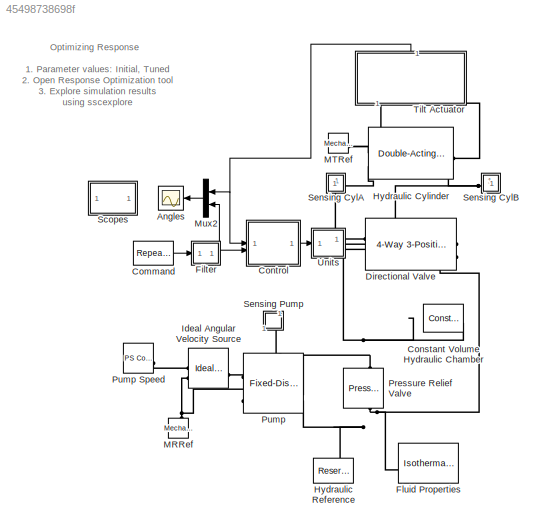
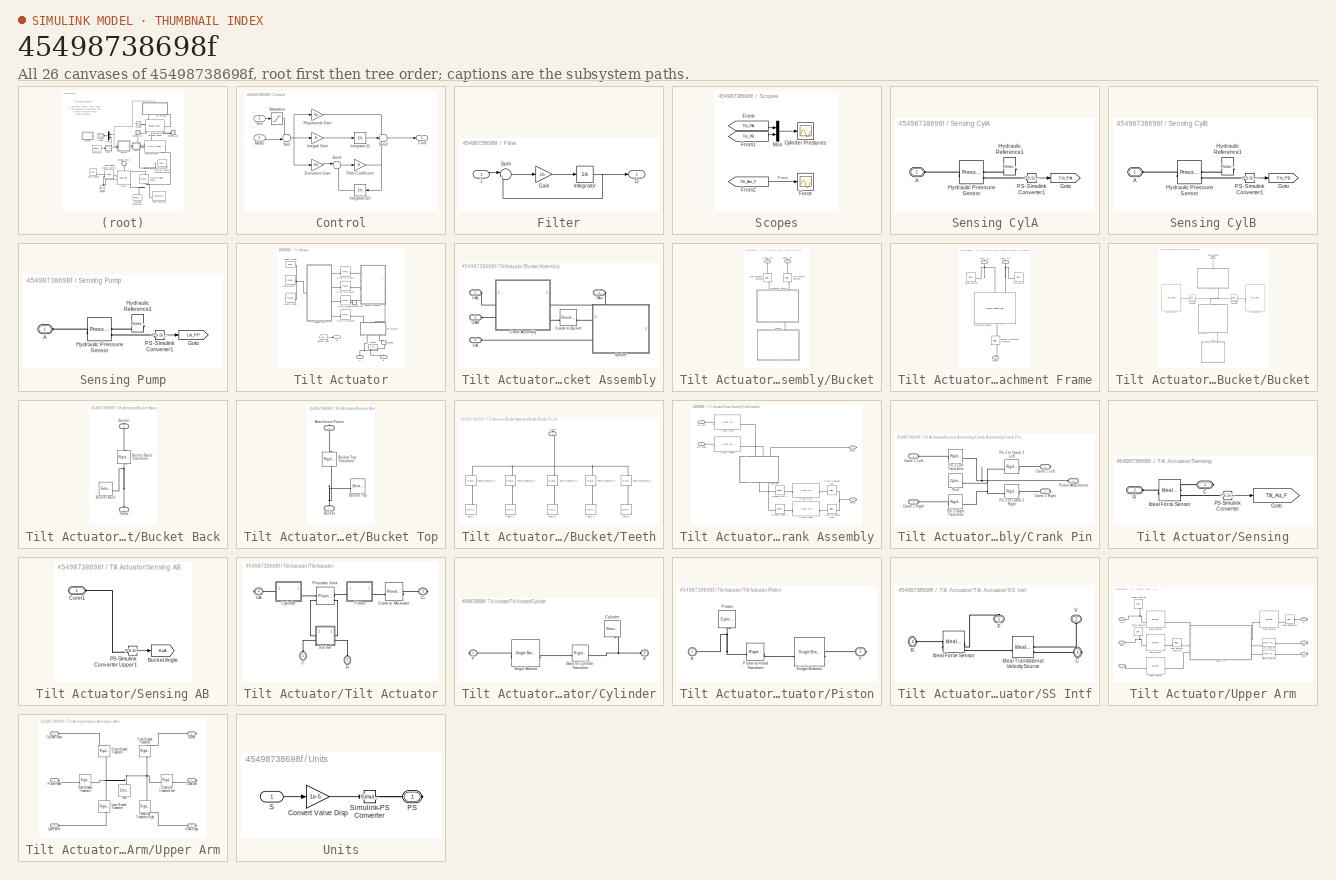
[diagram: thumbnail index - all 26 canvases of the model, root first then tree order]
MODEL slx_45498738698f
KIND model
CONFIG EnableMultiTasking = on
CONFIG MaxStep = 0.01
CONFIG PostLoadFcn = warning off Simulink:Engine:UsingDefaultMaxStepSize\nwarning off Simulink:blocks:MatchingFromNotFound\nwarning off Simulink:Engine:SaveWithParameterizedLinks_Warning\nwarning off Simulink:Engine:SolverMinStepSizeWarnForDAE\n
CONFIG PreLoadFcn = Kp_Final = 19.24;\nKi_Final = 0.5024;\n\nKp_Init = 0.1;\nKi_Init = 0.02;\n\n\nKp = Kp_Init;\nKi = Ki_Init;
CONFIG SolverName = ode23t
CONFIG StopTime = 30
WORKSPACE source: mxarray member
WORKSPACE Backhoe_TiltCyl_sdosession: sldodialogs.data.SessionData (value not decoded)
WORKSPACE cylinderGray = [0.6 0.6 0.6]
WORKSPACE darkOrange = [0.8 0.5 0]
WORKSPACE glassBlue = [0.2 0.2 1]
WORKSPACE gray = [0.3 0.3 0.3]
WORKSPACE orange = [0.8 0.65 0]
WORKSPACE pistonGray = [0.4 0.4 0.4]
WORKSPACE rhoGlass = 2500
WORKSPACE rhoRubber = 1500
WORKSPACE rhoSteel = 7800
WORKSPACE tireBlack = [0.1 0.1 0.1]
WORKSPACE wheelGray = [0.6 0.6 0.6]
WORKSPACE yellow = [0.8 0.8 0]
BLOCK [Scope] Angles
  ActiveDisplayYMaximum = 20
  ActiveDisplayYMinimum = -120
  DataLogging = on
  DataLoggingDecimation = 1
  DataLoggingSaveFormat = Structure With Time
  DataLoggingVariableName = Bucket_Angle_DATA
  Floating = off
  GraphicalSettings = {"GraphicalSettings":{"LegacySettings":true,"Style":{"AxesScalingProperties":{"ScaleAxesLimitsAtStop":false},"Style":{"AxesColor":"[0 0 0]","BackgroundColor":"[0.501960784313725 0.501960784313725 0.501960784313725]","ChannelNames":[""],"ColorOrder":"[1 0.909803921568627 0.392156862745098;0.149019607843137 0.549019607843137 0.866666666666667;0.96078431372549 0.466666666666667 0.16078431372549;0.286...<+693ch>
  MultipleDisplayCache = [{"MaxYLimMag":10,"MaxYLimReal":20,"MinYLimMag":0,"MinYLimReal":-120,"PlotAsMagnitudePhase":false,"ShowGrid":true,"ShowLegend":false,"Title":"%<SignalLabel>","YLabel":""}]
  NumInputPorts = 1
  WasSavedAsWebScope = on
BLOCK [Reference] Command  REF=simulink/Sources/Repeating
Sequence
  SourceBlock = simulink/Sources/Repeating\nSequence
  SourceType = Repeating table
BLOCK [Reference] Constant Volume Hydraulic Chamber  REF=fl_lib/Isothermal Liquid/Elements/Constant Volume
Chamber (IL)
  LibrarySourceBlock = fl_lib/Hydraulic/Hydraulic Elements/Constant Volume\nHydraulic Chamber
  NameLocation = top
  SourceBlock = fl_lib/Isothermal Liquid/Elements/Constant Volume\nChamber (IL)
  SourceType = Constant Volume\nChamber (IL)
BLOCK [SubSystem] Control
  NameLocation = top
BLOCK [Outport] Control/Cmd
  VectorParamsAs1DForOutWhenUnconnected = off
BLOCK [Gain] Control/Derivative Gain
  Gain = Kd
BLOCK [Gain] Control/Filter Coefficient
  Gain = N
BLOCK [Gain] Control/Integral Gain
  Gain = Ki
BLOCK [Integrator] Control/Integrator (D)
BLOCK [Integrator] Control/Integrator (I)
BLOCK [Inport] Control/Meas
BLOCK [Gain] Control/Proportional Gain
  Gain = Kp
BLOCK [Inport] Control/Ref
  NameLocation = top
  Port = 2
BLOCK [Saturate] Control/Saturation
  LowerLimit = lowerLim
  NameLocation = top
  UpperLimit = upperLim
BLOCK [Sum] Control/Sum
  Inputs = +-|
BLOCK [Sum] Control/Sum1
  Inputs = |+-
BLOCK [Sum] Control/Sum2
  Inputs = +++
BLOCK [Reference] Directional Valve  REF=SimscapeFluids_lib/Isothermal Liquid/Valves & Orifices/Directional Control
Valves/4-Way 3-Position
Directional Valve
(IL)
  LibrarySourceBlock = sh_lib/Valves/Directional Valves/4-Way Directional\nValve
  NameLocation = right
  SourceBlock = SimscapeFluids_lib/Isothermal Liquid/Valves & Orifices/Directional Control\nValves/4-Way 3-Position\nDirectional Valve\n(IL)
  SourceType = 4-Way 3-Position\nDirectional Valve\n(IL)
  Tag = Factory Generic
BLOCK [SubSystem] Filter
BLOCK [Gain] Filter/Gain
  Gain = 1/b
BLOCK [Inport] Filter/I
BLOCK [Integrator] Filter/Integrator
  InitialCondition = x_initial
BLOCK [Outport] Filter/O
  VectorParamsAs1DForOutWhenUnconnected = off
BLOCK [Sum] Filter/Sum
  Inputs = |+-
BLOCK [Reference] Fluid Properties  REF=fl_lib/Isothermal Liquid/Utilities/Isothermal Liquid
Properties (IL)
  LibrarySourceBlock = sh_lib/Hydraulic Utilities/Hydraulic Fluid
  SourceBlock = fl_lib/Isothermal Liquid/Utilities/Isothermal Liquid\nProperties (IL)
  SourceType = Isothermal Liquid\nProperties (IL)
BLOCK [Reference] Hydraulic Cylinder  REF=SimscapeFluids_lib/Isothermal Liquid/Actuators/Double-Acting
Actuator (IL)
  LibrarySourceBlock = sh_lib/Hydraulic Cylinders/Double-Acting\nHydraulic Cylinder
  SourceBlock = SimscapeFluids_lib/Isothermal Liquid/Actuators/Double-Acting\nActuator (IL)
  SourceType = Double-Acting\nActuator (IL)
  Tag = Factory Generic
BLOCK [Reference] Hydraulic Reference  REF=fl_lib/Isothermal Liquid/Elements/Reservoir (IL)
  LibrarySourceBlock = fl_lib/Hydraulic/Hydraulic Elements/Hydraulic Reference
  NameLocation = right
  SourceBlock = fl_lib/Isothermal Liquid/Elements/Reservoir (IL)
  SourceType = Reservoir (IL)
BLOCK [Reference] Ideal Angular Velocity Source  REF=fl_lib/Mechanical/Mechanical Sources/Ideal Angular
Velocity Source
  SourceBlock = fl_lib/Mechanical/Mechanical Sources/Ideal Angular\nVelocity Source
  SourceType = Ideal Angular\nVelocity Source
BLOCK [Reference] MRRef  REF=fl_lib/Mechanical/Rotational Elements/Mechanical
Rotational Reference
  NameLocation = right
  SourceBlock = fl_lib/Mechanical/Rotational Elements/Mechanical\nRotational Reference
  SourceType = Mechanical\nRotational Reference
BLOCK [Reference] MTRef  REF=fl_lib/Mechanical/Translational
Elements/Mechanical
Translational
Reference
  SourceBlock = fl_lib/Mechanical/Translational\nElements/Mechanical\nTranslational\nReference
  SourceType = Mechanical\nTranslational\nReference
  Tag = Factory Generic
BLOCK [Mux] Mux2
  DisplayOption = bar
  Inputs = 2
  NameLocation = top
BLOCK [Reference] Pressure Relief Valve  REF=SimscapeFluids_lib/Isothermal Liquid/Valves & Orifices/Pressure Control
Valves/Pressure Relief
Valve (IL)
  LibrarySourceBlock = sh_lib/Valves/Pressure Control\nValves/Pressure Relief\nValve
  NameLocation = right
  SourceBlock = SimscapeFluids_lib/Isothermal Liquid/Valves & Orifices/Pressure Control\nValves/Pressure Relief\nValve (IL)
  SourceType = Pressure Relief\nValve (IL)
BLOCK [Reference] Pump  REF=SimscapeFluids_lib/Isothermal Liquid/Pumps & Motors/Fixed-Displacement
Pump (IL)
  LibrarySourceBlock = sh_lib/Pumps and Motors/Fixed-Displacement\nPump
  NameLocation = right
  SourceBlock = SimscapeFluids_lib/Isothermal Liquid/Pumps & Motors/Fixed-Displacement\nPump (IL)
  SourceType = Fixed-Displacement\nPump (IL)
BLOCK [Reference] Pump Speed  REF=fl_lib/Physical Signals/Sources/PS Constant
  SourceBlock = fl_lib/Physical Signals/Sources/PS Constant
  SourceType = PS Constant
BLOCK [SubSystem] Scopes
BLOCK [Scope] Scopes/Cylinder Pressures
  ActiveDisplayYMaximum = 1.524492206148E+7
  ActiveDisplayYMinimum = 1.232835741741E+7
  DataLogging = on
  DataLoggingDecimateData = on
  DataLoggingDecimation = 1
  DataLoggingSaveFormat = Structure With Time
  DataLoggingVariableName = Cyl_Press_DATA
  Floating = off
  GraphicalSettings = {"GraphicalSettings":{"LegacySettings":true,"Style":{"AxesScalingProperties":{"ScaleAxesLimitsAtStop":false},"Style":{"AxesColor":"[0 0 0]","BackgroundColor":"[0.501960784313725 0.501960784313725 0.501960784313725]","ChannelNames":[""],"ColorOrder":"[1 0.909803921568627 0.392156862745098;0.149019607843137 0.549019607843137 0.866666666666667;0.96078431372549 0.466666666666667 0.16078431372549;0.286...<+696ch>
  MultipleDisplayCache = [{"MaxYLimMag":1.524492206148E+7,"MaxYLimReal":1.524492206148E+7,"MinYLimMag":1.232835741741E+7,"MinYLimReal":1.232835741741E+7,"PlotAsMagnitudePhase":false,"ShowGrid":true,"ShowLegend":false,"Title":"%<SignalLabel>","YLabel":""}]
  NumInputPorts = 1
  TimeSpan = 30
  WasSavedAsWebScope = on
BLOCK [Scope] Scopes/Force
  ActiveDisplayYMaximum = -162624.34482
  ActiveDisplayYMinimum = -169648.02487
  DataLogging = on
  DataLoggingDecimation = 1
  DataLoggingSaveFormat = Structure With Time
  DataLoggingVariableName = Tilt_Force_DATA
  Floating = off
  GraphicalSettings = {"GraphicalSettings":{"LegacySettings":true,"Style":{"AxesScalingProperties":{"ScaleAxesLimitsAtStop":false},"Style":{"AxesColor":"[0 0 0]","BackgroundColor":"[0.501960784313725 0.501960784313725 0.501960784313725]","ChannelNames":[""],"ColorOrder":"[1 0.909803921568627 0.392156862745098;0.149019607843137 0.549019607843137 0.866666666666667;0.96078431372549 0.466666666666667 0.16078431372549;0.286...<+747ch>
  MultipleDisplayCache = [{"MaxYLimMag":169648.02487,"MaxYLimReal":-162624.34482,"MinYLimMag":0,"MinYLimReal":-169648.02487,"PlotAsMagnitudePhase":false,"ShowGrid":true,"ShowLegend":false,"Title":"%<SignalLabel>","YLabel":""}]
  NumInputPorts = 1
  TimeSpan = 30
  WasSavedAsWebScope = on
BLOCK [From] Scopes/From
  CloseFcn = tagdialog Close
  GotoTag = Tilt_PA
  TagVisibility = global
BLOCK [From] Scopes/From1
  CloseFcn = tagdialog Close
  GotoTag = Tilt_PB
  TagVisibility = global
BLOCK [From] Scopes/From2
  GotoTag = Tilt_Act_F
  TagVisibility = global
BLOCK [Mux] Scopes/Mux
  DisplayOption = bar
  Inputs = 2
BLOCK [SubSystem] Sensing CylA
BLOCK [PMIOPort] Sensing CylA/A
  Side = Left
BLOCK [Goto] Sensing CylA/Goto
  GotoTag = Tilt_PA
  TagVisibility = global
BLOCK [Reference] Sensing CylA/Hydraulic Pressure Sensor  REF=fl_lib/Isothermal Liquid/Sensors/Pressure Sensor (IL)
  LibrarySourceBlock = fl_lib/Hydraulic/Hydraulic Sensors/Hydraulic Pressure\nSensor
  SourceBlock = fl_lib/Isothermal Liquid/Sensors/Pressure Sensor (IL)
  SourceType = Pressure Sensor (IL)
BLOCK [Reference] Sensing CylA/Hydraulic Reference1  REF=fl_lib/Isothermal Liquid/Elements/Reservoir (IL)
  LibrarySourceBlock = fl_lib/Hydraulic/Hydraulic Elements/Hydraulic Reference
  NameLocation = top
  SourceBlock = fl_lib/Isothermal Liquid/Elements/Reservoir (IL)
  SourceType = Reservoir (IL)
BLOCK [Reference] Sensing CylA/PS-Simulink Converter1  REF=nesl_utility/PS-Simulink
Converter
  SourceBlock = nesl_utility/PS-Simulink\nConverter
  SourceType = PS-Simulink\nConverter
BLOCK [SubSystem] Sensing CylB
  NameLocation = top
BLOCK [PMIOPort] Sensing CylB/A
  Side = Left
BLOCK [Goto] Sensing CylB/Goto
  GotoTag = Tilt_PB
  TagVisibility = global
BLOCK [Reference] Sensing CylB/Hydraulic Pressure Sensor  REF=fl_lib/Isothermal Liquid/Sensors/Pressure Sensor (IL)
  LibrarySourceBlock = fl_lib/Hydraulic/Hydraulic Sensors/Hydraulic Pressure\nSensor
  SourceBlock = fl_lib/Isothermal Liquid/Sensors/Pressure Sensor (IL)
  SourceType = Pressure Sensor (IL)
BLOCK [Reference] Sensing CylB/Hydraulic Reference1  REF=fl_lib/Isothermal Liquid/Elements/Reservoir (IL)
  LibrarySourceBlock = fl_lib/Hydraulic/Hydraulic Elements/Hydraulic Reference
  NameLocation = top
  SourceBlock = fl_lib/Isothermal Liquid/Elements/Reservoir (IL)
  SourceType = Reservoir (IL)
BLOCK [Reference] Sensing CylB/PS-Simulink Converter1  REF=nesl_utility/PS-Simulink
Converter
  SourceBlock = nesl_utility/PS-Simulink\nConverter
  SourceType = PS-Simulink\nConverter
BLOCK [SubSystem] Sensing Pump
  NameLocation = left
BLOCK [PMIOPort] Sensing Pump/A
  Side = Left
BLOCK [Goto] Sensing Pump/Goto
  GotoTag = Lift_PP
  TagVisibility = global
BLOCK [Reference] Sensing Pump/Hydraulic Pressure Sensor  REF=fl_lib/Isothermal Liquid/Sensors/Pressure Sensor (IL)
  LibrarySourceBlock = fl_lib/Hydraulic/Hydraulic Sensors/Hydraulic Pressure\nSensor
  SourceBlock = fl_lib/Isothermal Liquid/Sensors/Pressure Sensor (IL)
  SourceType = Pressure Sensor (IL)
BLOCK [Reference] Sensing Pump/Hydraulic Reference1  REF=fl_lib/Isothermal Liquid/Elements/Reservoir (IL)
  LibrarySourceBlock = fl_lib/Hydraulic/Hydraulic Elements/Hydraulic Reference
  NameLocation = top
  SourceBlock = fl_lib/Isothermal Liquid/Elements/Reservoir (IL)
  SourceType = Reservoir (IL)
BLOCK [Reference] Sensing Pump/PS-Simulink Converter1  REF=nesl_utility/PS-Simulink
Converter
  SourceBlock = nesl_utility/PS-Simulink\nConverter
  SourceType = PS-Simulink\nConverter
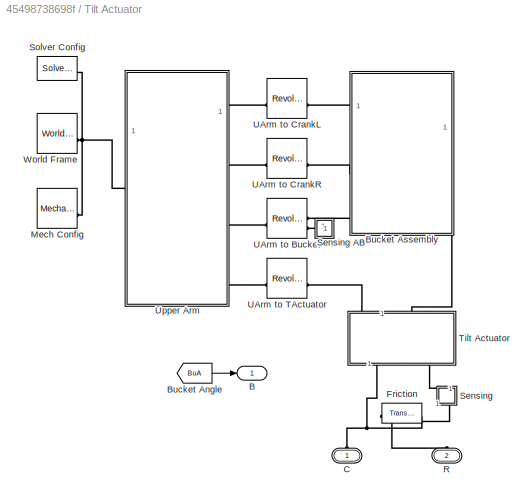
BLOCK [SubSystem] Tilt Actuator
  NameLocation = right
  Tag = PublishSubsystem
BLOCK [Outport] Tilt Actuator/B
  VectorParamsAs1DForOutWhenUnconnected = off
BLOCK [From] Tilt Actuator/Bucket Angle
  GotoTag = BuA
  TagVisibility = global
BLOCK [SubSystem] Tilt Actuator/Bucket Assembly
BLOCK [SubSystem] Tilt Actuator/Bucket Assembly/Bucket
BLOCK [Reference] Tilt Actuator/Bucket Assembly/Bucket/Arm Revolute Rotation  REF=sm_lib/Frames and
Transforms/Rigid
Transform
  NameLocation = right
  SourceBlock = sm_lib/Frames and\nTransforms/Rigid\nTransform
  SourceType = Rigid\nTransform
BLOCK [SubSystem] Tilt Actuator/Bucket Assembly/Bucket/Attachment Frame
  NameLocation = right
BLOCK [Reference] Tilt Actuator/Bucket Assembly/Bucket/Attachment Frame/Arm Link Pin  REF=sm_lib/Body Elements/Cylindrical Solid
  SourceBlock = sm_lib/Body Elements/Cylindrical Solid
  SourceType = Cylindrical Solid
BLOCK [Reference] Tilt Actuator/Bucket Assembly/Bucket/Attachment Frame/Attachment Plates  REF=Backhoe_Lib/Bracket Double Hole
  NameLocation = right
  SourceBlock = Backhoe_Lib/Bracket Double Hole
  SourceType = Bracket Double Hole
BLOCK [PMIOPort] Tilt Actuator/Bucket Assembly/Bucket/Attachment Frame/Bucket
  NameLocation = left
  Port = 3
  Side = Left
BLOCK [Reference] Tilt Actuator/Bucket Assembly/Bucket/Attachment Frame/Bucket Attachment Transform  REF=sm_lib/Frames and
Transforms/Rigid
Transform
  NameLocation = right
  SourceBlock = sm_lib/Frames and\nTransforms/Rigid\nTransform
  SourceType = Rigid\nTransform
BLOCK [PMIOPort] Tilt Actuator/Bucket Assembly/Bucket/Attachment Frame/Crank Arm
  NameLocation = left
  Side = Right
BLOCK [Reference] Tilt Actuator/Bucket Assembly/Bucket/Attachment Frame/Crank Link Pin  REF=sm_lib/Body Elements/Cylindrical Solid
  SourceBlock = sm_lib/Body Elements/Cylindrical Solid
  SourceType = Cylindrical Solid
BLOCK [PMIOPort] Tilt Actuator/Bucket Assembly/Bucket/Attachment Frame/Upper Arm
  NameLocation = right
  Port = 2
  Side = Right
BLOCK [SubSystem] Tilt Actuator/Bucket Assembly/Bucket/Bucket
  NameLocation = right
BLOCK [PMIOPort] Tilt Actuator/Bucket Assembly/Bucket/Bucket/Attachment Frame
  NameLocation = right
  Side = Right
BLOCK [SubSystem] Tilt Actuator/Bucket Assembly/Bucket/Bucket/Bucket Back
  NameLocation = right
BLOCK [PMIOPort] Tilt Actuator/Bucket Assembly/Bucket/Bucket/Bucket Back/Bucket
  NameLocation = right
  Side = Right
BLOCK [Reference] Tilt Actuator/Bucket Assembly/Bucket/Bucket/Bucket Back/Bucket Back  REF=sm_lib/Body Elements/Extruded Solid
  NameLocation = top
  SourceBlock = sm_lib/Body Elements/Extruded Solid
  SourceType = Extruded Solid
BLOCK [Reference] Tilt Actuator/Bucket Assembly/Bucket/Bucket/Bucket Back/Bucket Back Transform  REF=sm_lib/Frames and
Transforms/Rigid
Transform
  NameLocation = left
  SourceBlock = sm_lib/Frames and\nTransforms/Rigid\nTransform
  SourceType = Rigid\nTransform
BLOCK [PMIOPort] Tilt Actuator/Bucket Assembly/Bucket/Bucket/Bucket Back/Teeth
  NameLocation = right
  Port = 2
  Side = Left
BLOCK [Reference] Tilt Actuator/Bucket Assembly/Bucket/Bucket/Bucket Left Transform  REF=sm_lib/Frames and
Transforms/Rigid
Transform
  NameLocation = top
  SourceBlock = sm_lib/Frames and\nTransforms/Rigid\nTransform
  SourceType = Rigid\nTransform
BLOCK [Reference] Tilt Actuator/Bucket Assembly/Bucket/Bucket/Bucket Right Transform  REF=sm_lib/Frames and
Transforms/Rigid
Transform
  NameLocation = top
  SourceBlock = sm_lib/Frames and\nTransforms/Rigid\nTransform
  SourceType = Rigid\nTransform
BLOCK [Reference] Tilt Actuator/Bucket Assembly/Bucket/Bucket/Bucket Side Left  REF=Backhoe_Lib/Bucket Side
  SourceBlock = Backhoe_Lib/Bucket Side
  SourceType = Bucket Side
BLOCK [Reference] Tilt Actuator/Bucket Assembly/Bucket/Bucket/Bucket SideRight  REF=Backhoe_Lib/Bucket Side
  SourceBlock = Backhoe_Lib/Bucket Side
  SourceType = Bucket Side
BLOCK [SubSystem] Tilt Actuator/Bucket Assembly/Bucket/Bucket/Bucket Top
  NameLocation = right
BLOCK [PMIOPort] Tilt Actuator/Bucket Assembly/Bucket/Bucket/Bucket Top/Attachment Frame
  NameLocation = right
  Side = Right
BLOCK [PMIOPort] Tilt Actuator/Bucket Assembly/Bucket/Bucket/Bucket Top/Bucket
  NameLocation = right
  Port = 2
  Side = Left
BLOCK [Reference] Tilt Actuator/Bucket Assembly/Bucket/Bucket/Bucket Top/Bucket Top  REF=sm_lib/Body Elements/Brick Solid
  NameLocation = top
  SourceBlock = sm_lib/Body Elements/Brick Solid
  SourceType = Brick Solid
BLOCK [Reference] Tilt Actuator/Bucket Assembly/Bucket/Bucket/Bucket Top/Bucket Top Transform  REF=sm_lib/Frames and
Transforms/Rigid
Transform
  NameLocation = right
  SourceBlock = sm_lib/Frames and\nTransforms/Rigid\nTransform
  SourceType = Rigid\nTransform
BLOCK [SubSystem] Tilt Actuator/Bucket Assembly/Bucket/Bucket/Teeth
  NameLocation = right
BLOCK [PMIOPort] Tilt Actuator/Bucket Assembly/Bucket/Bucket/Teeth/Bucket
  NameLocation = right
  Side = Right
BLOCK [Reference] Tilt Actuator/Bucket Assembly/Bucket/Bucket/Teeth/Tooth 1  REF=sm_lib/Body Elements/Extruded Solid
  NameLocation = left
  SourceBlock = sm_lib/Body Elements/Extruded Solid
  SourceType = Extruded Solid
BLOCK [Reference] Tilt Actuator/Bucket Assembly/Bucket/Bucket/Teeth/Tooth 2  REF=sm_lib/Body Elements/Extruded Solid
  NameLocation = left
  SourceBlock = sm_lib/Body Elements/Extruded Solid
  SourceType = Extruded Solid
BLOCK [Reference] Tilt Actuator/Bucket Assembly/Bucket/Bucket/Teeth/Tooth 3  REF=sm_lib/Body Elements/Extruded Solid
  NameLocation = left
  SourceBlock = sm_lib/Body Elements/Extruded Solid
  SourceType = Extruded Solid
BLOCK [Reference] Tilt Actuator/Bucket Assembly/Bucket/Bucket/Teeth/Tooth 4  REF=sm_lib/Body Elements/Extruded Solid
  NameLocation = left
  SourceBlock = sm_lib/Body Elements/Extruded Solid
  SourceType = Extruded Solid
BLOCK [Reference] Tilt Actuator/Bucket Assembly/Bucket/Bucket/Teeth/Tooth 5  REF=sm_lib/Body Elements/Extruded Solid
  NameLocation = left
  SourceBlock = sm_lib/Body Elements/Extruded Solid
  SourceType = Extruded Solid
BLOCK [Reference] Tilt Actuator/Bucket Assembly/Bucket/Bucket/Teeth/Tooth Transform 1  REF=sm_lib/Frames and
Transforms/Rigid
Transform
  NameLocation = left
  SourceBlock = sm_lib/Frames and\nTransforms/Rigid\nTransform
  SourceType = Rigid\nTransform
BLOCK [Reference] Tilt Actuator/Bucket Assembly/Bucket/Bucket/Teeth/Tooth Transform 2  REF=sm_lib/Frames and
Transforms/Rigid
Transform
  NameLocation = left
  SourceBlock = sm_lib/Frames and\nTransforms/Rigid\nTransform
  SourceType = Rigid\nTransform
BLOCK [Reference] Tilt Actuator/Bucket Assembly/Bucket/Bucket/Teeth/Tooth Transform 3  REF=sm_lib/Frames and
Transforms/Rigid
Transform
  NameLocation = left
  SourceBlock = sm_lib/Frames and\nTransforms/Rigid\nTransform
  SourceType = Rigid\nTransform
BLOCK [Reference] Tilt Actuator/Bucket Assembly/Bucket/Bucket/Teeth/Tooth Transform 4  REF=sm_lib/Frames and
Transforms/Rigid
Transform
  NameLocation = left
  SourceBlock = sm_lib/Frames and\nTransforms/Rigid\nTransform
  SourceType = Rigid\nTransform
BLOCK [Reference] Tilt Actuator/Bucket Assembly/Bucket/Bucket/Teeth/Tooth Transform 5  REF=sm_lib/Frames and
Transforms/Rigid
Transform
  NameLocation = left
  SourceBlock = sm_lib/Frames and\nTransforms/Rigid\nTransform
  SourceType = Rigid\nTransform
BLOCK [PMIOPort] Tilt Actuator/Bucket Assembly/Bucket/Crank Arm
  NameLocation = left
  Side = Right
BLOCK [Reference] Tilt Actuator/Bucket Assembly/Bucket/Crank Revolute Rotation  REF=sm_lib/Frames and
Transforms/Rigid
Transform
  NameLocation = left
  SourceBlock = sm_lib/Frames and\nTransforms/Rigid\nTransform
  SourceType = Rigid\nTransform
BLOCK [PMIOPort] Tilt Actuator/Bucket Assembly/Bucket/Upper Arm
  NameLocation = right
  Port = 2
  Side = Right
BLOCK [SubSystem] Tilt Actuator/Bucket Assembly/Crank Assembly
BLOCK [PMIOPort] Tilt Actuator/Bucket Assembly/Crank Assembly/Arm Left
  Side = Left
BLOCK [PMIOPort] Tilt Actuator/Bucket Assembly/Crank Assembly/Arm Right
  NameLocation = top
  Port = 2
  Side = Left
BLOCK [PMIOPort] Tilt Actuator/Bucket Assembly/Crank Assembly/Bucket
  Port = 4
  Side = Right
BLOCK [Reference] Tilt Actuator/Bucket Assembly/Crank Assembly/Crank 1 Left  REF=Backhoe_Lib/Crank Arm
  NameLocation = top
  SourceBlock = Backhoe_Lib/Crank Arm
  SourceType = Crank Arm
BLOCK [Reference] Tilt Actuator/Bucket Assembly/Crank Assembly/Crank 1 Right  REF=Backhoe_Lib/Crank Arm
  SourceBlock = Backhoe_Lib/Crank Arm
  SourceType = Crank Arm
BLOCK [Reference] Tilt Actuator/Bucket Assembly/Crank Assembly/Crank 2 Left  REF=Backhoe_Lib/Crank Arm
  NameLocation = top
  SourceBlock = Backhoe_Lib/Crank Arm
  SourceType = Crank Arm
BLOCK [Reference] Tilt Actuator/Bucket Assembly/Crank Assembly/Crank 2 Right  REF=Backhoe_Lib/Crank Arm
  SourceBlock = Backhoe_Lib/Crank Arm
  SourceType = Crank Arm
BLOCK [SubSystem] Tilt Actuator/Bucket Assembly/Crank Assembly/Crank Pin
  NameLocation = right
BLOCK [PMIOPort] Tilt Actuator/Bucket Assembly/Crank Assembly/Crank Pin/Crank 1 Left
  NameLocation = top
  Side = Left
BLOCK [PMIOPort] Tilt Actuator/Bucket Assembly/Crank Assembly/Crank Pin/Crank 1 Right
  NameLocation = top
  Port = 2
  Side = Left
BLOCK [PMIOPort] Tilt Actuator/Bucket Assembly/Crank Assembly/Crank Pin/Crank 2 Left
  Port = 3
  Side = Right
BLOCK [PMIOPort] Tilt Actuator/Bucket Assembly/Crank Assembly/Crank Pin/Crank 2 Right
  Port = 4
  Side = Right
BLOCK [Reference] Tilt Actuator/Bucket Assembly/Crank Assembly/Crank Pin/Pin 2 Left Transform  REF=sm_lib/Frames and
Transforms/Rigid
Transform
  NameLocation = top
  SourceBlock = sm_lib/Frames and\nTransforms/Rigid\nTransform
  SourceType = Rigid\nTransform
BLOCK [Reference] Tilt Actuator/Bucket Assembly/Crank Assembly/Crank Pin/Pin 2 Right Transform  REF=sm_lib/Frames and
Transforms/Rigid
Transform
  SourceBlock = sm_lib/Frames and\nTransforms/Rigid\nTransform
  SourceType = Rigid\nTransform
BLOCK [Reference] Tilt Actuator/Bucket Assembly/Crank Assembly/Crank Pin/Pin 2 to Crank 2 Left  REF=sm_lib/Frames and
Transforms/Rigid
Transform
  NameLocation = top
  SourceBlock = sm_lib/Frames and\nTransforms/Rigid\nTransform
  SourceType = Rigid\nTransform
BLOCK [Reference] Tilt Actuator/Bucket Assembly/Crank Assembly/Crank Pin/Pin 2 to Crank 2 Right  REF=sm_lib/Frames and
Transforms/Rigid
Transform
  SourceBlock = sm_lib/Frames and\nTransforms/Rigid\nTransform
  SourceType = Rigid\nTransform
BLOCK [Reference] Tilt Actuator/Bucket Assembly/Crank Assembly/Crank Pin/Pin2  REF=sm_lib/Body Elements/Cylindrical Solid
  NameLocation = top
  SourceBlock = sm_lib/Body Elements/Cylindrical Solid
  SourceType = Cylindrical Solid
BLOCK [PMIOPort] Tilt Actuator/Bucket Assembly/Crank Assembly/Crank Pin/Piston Attachment
  Port = 5
  Side = Left
BLOCK [Reference] Tilt Actuator/Bucket Assembly/Crank Assembly/Crank to Bucket Left  REF=sm_lib/Frames and
Transforms/Rigid
Transform
  NameLocation = top
  SourceBlock = sm_lib/Frames and\nTransforms/Rigid\nTransform
  SourceType = Rigid\nTransform
BLOCK [Reference] Tilt Actuator/Bucket Assembly/Crank Assembly/Crank to Bucket Right  REF=sm_lib/Frames and
Transforms/Rigid
Transform
  SourceBlock = sm_lib/Frames and\nTransforms/Rigid\nTransform
  SourceType = Rigid\nTransform
BLOCK [PMIOPort] Tilt Actuator/Bucket Assembly/Crank Assembly/Piston
  Port = 3
  Side = Right
BLOCK [Reference] Tilt Actuator/Bucket Assembly/Crank Assembly/Revolute Left 2  REF=sm_lib/Joints/Revolute Joint
  SourceBlock = sm_lib/Joints/Revolute Joint
  SourceType = Revolute Joint
BLOCK [Reference] Tilt Actuator/Bucket Assembly/Crank Assembly/Revolute Right 2  REF=sm_lib/Joints/Revolute Joint
  SourceBlock = sm_lib/Joints/Revolute Joint
  SourceType = Revolute Joint
BLOCK [Reference] Tilt Actuator/Bucket Assembly/Crank to Bucket  REF=sm_lib/Joints/Revolute Joint
  SourceBlock = sm_lib/Joints/Revolute Joint
  SourceType = Revolute Joint
BLOCK [PMIOPort] Tilt Actuator/Bucket Assembly/TAct
  NameLocation = top
  Side = Right
BLOCK [PMIOPort] Tilt Actuator/Bucket Assembly/UA
  Port = 4
  Side = Left
BLOCK [PMIOPort] Tilt Actuator/Bucket Assembly/UAL
  Port = 2
  Side = Left
BLOCK [PMIOPort] Tilt Actuator/Bucket Assembly/UAR
  Port = 3
  Side = Left
BLOCK [PMIOPort] Tilt Actuator/C
  NameLocation = left
  Side = Left
BLOCK [Reference] Tilt Actuator/Friction  REF=fl_lib/Mechanical/Translational
Elements/Translational
Friction
  SourceBlock = fl_lib/Mechanical/Translational\nElements/Translational\nFriction
  SourceType = Translational\nFriction
BLOCK [Reference] Tilt Actuator/Mech Config  REF=sm_lib/Utilities/Mechanism
Configuration
  SourceBlock = sm_lib/Utilities/Mechanism\nConfiguration
  SourceType = Mechanism\nConfiguration
BLOCK [PMIOPort] Tilt Actuator/R
  NameLocation = left
  Port = 2
  Side = Left
BLOCK [SubSystem] Tilt Actuator/Sensing
  NameLocation = left
BLOCK [SubSystem] Tilt Actuator/Sensing AB
BLOCK [Goto] Tilt Actuator/Sensing AB/Bucket Angle
  GotoTag = BuA
  TagVisibility = global
BLOCK [PMIOPort] Tilt Actuator/Sensing AB/Conn1
  Side = Left
BLOCK [Reference] Tilt Actuator/Sensing AB/PS-Simulink Converter Upper1  REF=nesl_utility/PS-Simulink
Converter
  SourceBlock = nesl_utility/PS-Simulink\nConverter
  SourceType = PS-Simulink\nConverter
BLOCK [PMIOPort] Tilt Actuator/Sensing/C
  Side = Right
BLOCK [Goto] Tilt Actuator/Sensing/Goto
  GotoTag = Tilt_Act_F
  TagVisibility = global
BLOCK [Reference] Tilt Actuator/Sensing/Ideal Force Sensor  REF=fl_lib/Mechanical/Mechanical Sensors/Ideal Force Sensor
  SourceBlock = fl_lib/Mechanical/Mechanical Sensors/Ideal Force Sensor
  SourceType = Ideal Force Sensor
BLOCK [Reference] Tilt Actuator/Sensing/PS-Simulink Converter  REF=nesl_utility/PS-Simulink
Converter
  SourceBlock = nesl_utility/PS-Simulink\nConverter
  SourceType = PS-Simulink\nConverter
BLOCK [PMIOPort] Tilt Actuator/Sensing/R
  Port = 2
  Side = Left
BLOCK [Reference] Tilt Actuator/Solver Config  REF=nesl_utility/Solver
Configuration
  SourceBlock = nesl_utility/Solver\nConfiguration
  SourceType = Solver\nConfiguration
BLOCK [SubSystem] Tilt Actuator/Tilt Actuator
  NameLocation = left
BLOCK [PMIOPort] Tilt Actuator/Tilt Actuator/C
  NameLocation = left
  Side = Left
BLOCK [PMIOPort] Tilt Actuator/Tilt Actuator/Cr
  Port = 3
  Side = Right
BLOCK [Reference] Tilt Actuator/Tilt Actuator/Crank to TActuator  REF=sm_lib/Joints/Revolute Joint
  SourceBlock = sm_lib/Joints/Revolute Joint
  SourceType = Revolute Joint
BLOCK [SubSystem] Tilt Actuator/Tilt Actuator/Cylinder
BLOCK [PMIOPort] Tilt Actuator/Tilt Actuator/Cylinder/B
  NameLocation = top
  Port = 2
  Side = Left
BLOCK [Reference] Tilt Actuator/Tilt Actuator/Cylinder/Base to Cylinder Transform  REF=sm_lib/Frames and
Transforms/Rigid
Transform
  SourceBlock = sm_lib/Frames and\nTransforms/Rigid\nTransform
  SourceType = Rigid\nTransform
BLOCK [Reference] Tilt Actuator/Tilt Actuator/Cylinder/Cylinder  REF=sm_lib/Body Elements/Extruded Solid
  NameLocation = left
  SourceBlock = sm_lib/Body Elements/Extruded Solid
  SourceType = Extruded Solid
BLOCK [PMIOPort] Tilt Actuator/Tilt Actuator/Cylinder/F
  NameLocation = top
  Side = Right
BLOCK [Reference] Tilt Actuator/Tilt Actuator/Cylinder/Single Bracket  REF=Backhoe_Lib/Single Bracket
  NameLocation = top
  SourceBlock = Backhoe_Lib/Single Bracket
  SourceType = Single Bracket
BLOCK [SubSystem] Tilt Actuator/Tilt Actuator/Piston
BLOCK [PMIOPort] Tilt Actuator/Tilt Actuator/Piston/B
  NameLocation = top
  Side = Left
BLOCK [PMIOPort] Tilt Actuator/Tilt Actuator/Piston/F
  NameLocation = top
  Port = 2
  Side = Right
BLOCK [Reference] Tilt Actuator/Tilt Actuator/Piston/Piston  REF=sm_lib/Body Elements/Cylindrical Solid
  NameLocation = left
  SourceBlock = sm_lib/Body Elements/Cylindrical Solid
  SourceType = Cylindrical Solid
BLOCK [Reference] Tilt Actuator/Tilt Actuator/Piston/Piston to Head Transform  REF=sm_lib/Frames and
Transforms/Rigid
Transform
  SourceBlock = sm_lib/Frames and\nTransforms/Rigid\nTransform
  SourceType = Rigid\nTransform
BLOCK [Reference] Tilt Actuator/Tilt Actuator/Piston/Single Bracket  REF=Backhoe_Lib/Single Bracket
  SourceBlock = Backhoe_Lib/Single Bracket
  SourceType = Single Bracket
BLOCK [Reference] Tilt Actuator/Tilt Actuator/Prismatic  Joint  REF=sm_lib/Joints/Prismatic
Joint
  SourceBlock = sm_lib/Joints/Prismatic\nJoint
  SourceType = Prismatic\nJoint
BLOCK [PMIOPort] Tilt Actuator/Tilt Actuator/R
  NameLocation = left
  Port = 2
  Side = Left
BLOCK [SubSystem] Tilt Actuator/Tilt Actuator/SS Intf
BLOCK [PMIOPort] Tilt Actuator/Tilt Actuator/SS Intf/C
  Port = 4
  Side = Right
BLOCK [PMIOPort] Tilt Actuator/Tilt Actuator/SS Intf/F
  NameLocation = left
  Side = Right
BLOCK [Reference] Tilt Actuator/Tilt Actuator/SS Intf/Ideal Force Sensor  REF=fl_lib/Mechanical/Mechanical Sensors/Ideal Force Sensor
  NameLocation = top
  SourceBlock = fl_lib/Mechanical/Mechanical Sensors/Ideal Force Sensor
  SourceType = Ideal Force Sensor
BLOCK [Reference] Tilt Actuator/Tilt Actuator/SS Intf/Ideal Translational Velocity Source  REF=fl_lib/Mechanical/Mechanical Sources/Ideal Translational
Velocity Source
  SourceBlock = fl_lib/Mechanical/Mechanical Sources/Ideal Translational\nVelocity Source
  SourceType = Ideal Translational\nVelocity Source
BLOCK [PMIOPort] Tilt Actuator/Tilt Actuator/SS Intf/R
  Port = 3
  Side = Left
BLOCK [PMIOPort] Tilt Actuator/Tilt Actuator/SS Intf/V
  NameLocation = left
  Port = 2
  Side = Left
BLOCK [PMIOPort] Tilt Actuator/Tilt Actuator/UA
  NameLocation = top
  Port = 4
  Side = Right
BLOCK [Reference] Tilt Actuator/UArm to Bucket  REF=sm_lib/Joints/Revolute Joint
  SourceBlock = sm_lib/Joints/Revolute Joint
  SourceType = Revolute Joint
BLOCK [Reference] Tilt Actuator/UArm to CrankL  REF=sm_lib/Joints/Revolute Joint
  SourceBlock = sm_lib/Joints/Revolute Joint
  SourceType = Revolute Joint
BLOCK [Reference] Tilt Actuator/UArm to CrankR  REF=sm_lib/Joints/Revolute Joint
  SourceBlock = sm_lib/Joints/Revolute Joint
  SourceType = Revolute Joint
BLOCK [Reference] Tilt Actuator/UArm to TActuator  REF=sm_lib/Joints/Revolute Joint
  SourceBlock = sm_lib/Joints/Revolute Joint
  SourceType = Revolute Joint
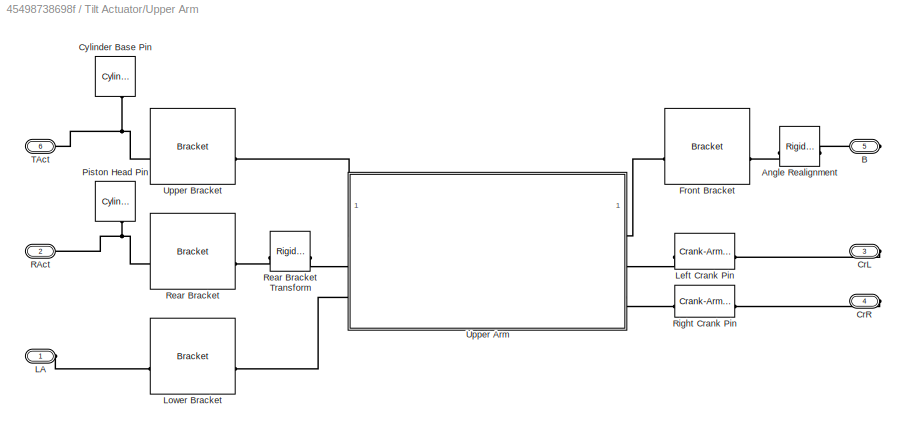
BLOCK [SubSystem] Tilt Actuator/Upper Arm
BLOCK [Reference] Tilt Actuator/Upper Arm/Angle Realignment  REF=sm_lib/Frames and
Transforms/Rigid
Transform
  NameLocation = top
  SourceBlock = sm_lib/Frames and\nTransforms/Rigid\nTransform
  SourceType = Rigid\nTransform
BLOCK [PMIOPort] Tilt Actuator/Upper Arm/B
  Port = 5
  Side = Right
BLOCK [PMIOPort] Tilt Actuator/Upper Arm/CrL
  Port = 3
  Side = Right
BLOCK [PMIOPort] Tilt Actuator/Upper Arm/CrR
  Port = 4
  Side = Right
BLOCK [Reference] Tilt Actuator/Upper Arm/Cylinder Base Pin  REF=sm_lib/Body Elements/Cylindrical Solid
  NameLocation = left
  SourceBlock = sm_lib/Body Elements/Cylindrical Solid
  SourceType = Cylindrical Solid
BLOCK [Reference] Tilt Actuator/Upper Arm/Front Bracket  REF=Backhoe_Lib/Bracket
  NameLocation = top
  SourceBlock = Backhoe_Lib/Bracket
  SourceType = Bracket
BLOCK [PMIOPort] Tilt Actuator/Upper Arm/LA
  Side = Left
BLOCK [Reference] Tilt Actuator/Upper Arm/Left Crank Pin  REF=Backhoe_Lib/Crank-Arm Pin
  NameLocation = top
  SourceBlock = Backhoe_Lib/Crank-Arm Pin
  SourceType = Crank Pin
BLOCK [Reference] Tilt Actuator/Upper Arm/Lower Bracket  REF=Backhoe_Lib/Bracket
  SourceBlock = Backhoe_Lib/Bracket
  SourceType = Bracket
BLOCK [Reference] Tilt Actuator/Upper Arm/Piston Head Pin  REF=sm_lib/Body Elements/Cylindrical Solid
  NameLocation = left
  SourceBlock = sm_lib/Body Elements/Cylindrical Solid
  SourceType = Cylindrical Solid
BLOCK [PMIOPort] Tilt Actuator/Upper Arm/RAct
  Port = 2
  Side = Left
BLOCK [Reference] Tilt Actuator/Upper Arm/Rear Bracket  REF=Backhoe_Lib/Bracket
  SourceBlock = Backhoe_Lib/Bracket
  SourceType = Bracket
BLOCK [Reference] Tilt Actuator/Upper Arm/Rear Bracket Transform  REF=sm_lib/Frames and
Transforms/Rigid
Transform
  SourceBlock = sm_lib/Frames and\nTransforms/Rigid\nTransform
  SourceType = Rigid\nTransform
BLOCK [Reference] Tilt Actuator/Upper Arm/Right Crank Pin  REF=Backhoe_Lib/Crank-Arm Pin
  SourceBlock = Backhoe_Lib/Crank-Arm Pin
  SourceType = Crank Pin
BLOCK [PMIOPort] Tilt Actuator/Upper Arm/TAct
  Port = 6
  Side = Right
BLOCK [SubSystem] Tilt Actuator/Upper Arm/Upper Arm
BLOCK [Reference] Tilt Actuator/Upper Arm/Upper Arm/Bar  REF=sm_lib/Body Elements/Extruded Solid
  NameLocation = right
  SourceBlock = sm_lib/Body Elements/Extruded Solid
  SourceType = Extruded Solid
BLOCK [PMIOPort] Tilt Actuator/Upper Arm/Upper Arm/Bucket
  Port = 4
  Side = Right
BLOCK [PMIOPort] Tilt Actuator/Upper Arm/Upper Arm/Crank Left
  NameLocation = top
  Port = 5
  Side = Right
BLOCK [Reference] Tilt Actuator/Upper Arm/Upper Arm/Crank Link Transform Left  REF=sm_lib/Frames and
Transforms/Rigid
Transform
  SourceBlock = sm_lib/Frames and\nTransforms/Rigid\nTransform
  SourceType = Rigid\nTransform
BLOCK [Reference] Tilt Actuator/Upper Arm/Upper Arm/Crank Link Transform Right  REF=sm_lib/Frames and
Transforms/Rigid
Transform
  NameLocation = right
  SourceBlock = sm_lib/Frames and\nTransforms/Rigid\nTransform
  SourceType = Rigid\nTransform
BLOCK [PMIOPort] Tilt Actuator/Upper Arm/Upper Arm/Crank Right
  Port = 6
  Side = Right
BLOCK [PMIOPort] Tilt Actuator/Upper Arm/Upper Arm/Cylinder Base
  NameLocation = top
  Side = Left
BLOCK [Reference] Tilt Actuator/Upper Arm/Upper Arm/Front Bracket Transform  REF=sm_lib/Frames and
Transforms/Rigid
Transform
  NameLocation = right
  SourceBlock = sm_lib/Frames and\nTransforms/Rigid\nTransform
  SourceType = Rigid\nTransform
BLOCK [PMIOPort] Tilt Actuator/Upper Arm/Upper Arm/Lower Arm
  NameLocation = top
  Port = 3
  Side = Left
BLOCK [Reference] Tilt Actuator/Upper Arm/Upper Arm/Lower Bracket Transform  REF=sm_lib/Frames and
Transforms/Rigid
Transform
  NameLocation = left
  SourceBlock = sm_lib/Frames and\nTransforms/Rigid\nTransform
  SourceType = Rigid\nTransform
BLOCK [Reference] Tilt Actuator/Upper Arm/Upper Arm/Piston Bracket Transform  REF=sm_lib/Frames and
Transforms/Rigid
Transform
  NameLocation = left
  SourceBlock = sm_lib/Frames and\nTransforms/Rigid\nTransform
  SourceType = Rigid\nTransform
BLOCK [PMIOPort] Tilt Actuator/Upper Arm/Upper Arm/Piston Head
  NameLocation = top
  Port = 2
  Side = Left
BLOCK [Reference] Tilt Actuator/Upper Arm/Upper Arm/Rear Bracket Transform  REF=sm_lib/Frames and
Transforms/Rigid
Transform
  NameLocation = top
  SourceBlock = sm_lib/Frames and\nTransforms/Rigid\nTransform
  SourceType = Rigid\nTransform
BLOCK [Reference] Tilt Actuator/Upper Arm/Upper Bracket  REF=Backhoe_Lib/Bracket
  NameLocation = top
  SourceBlock = Backhoe_Lib/Bracket
  SourceType = Bracket
BLOCK [Reference] Tilt Actuator/World Frame  REF=sm_lib/Frames and
Transforms/World Frame
  SourceBlock = sm_lib/Frames and\nTransforms/World Frame
  SourceType = World Frame
BLOCK [SubSystem] Units
BLOCK [Gain] Units/Convert Valve Disp
  Gain = 1e-5
BLOCK [PMIOPort] Units/PS
  Side = Right
BLOCK [Inport] Units/S
BLOCK [Reference] Units/Simulink-PS Converter  REF=nesl_utility/Simulink-PS
Converter
  SourceBlock = nesl_utility/Simulink-PS\nConverter
  SourceType = Simulink-PS\nConverter
ANNOTATION (root): 1. Parameter values: Initial , Tuned 2. Open Response Optimization tool 3. Explore simulation results using sscexplore
ANNOTATION (root): Optimizing Response
LINE Command:1 -> Filter:1
LINE Control/Derivative Gain:1 -> Control/Sum1:1
NET Control/Filter Coefficient:1 -> Control/Integrator (D):1, Control/Sum2:3
LINE Control/Integral Gain:1 -> Control/Integrator (I):1
LINE Control/Integrator (D):1 -> Control/Sum1:2
LINE Control/Integrator (I):1 -> Control/Sum2:2
LINE Control/Meas:1 -> Control/Sum:2
LINE Control/Proportional Gain:1 -> Control/Sum2:1
LINE Control/Ref:1 -> Control/Saturation:1
LINE Control/Saturation:1 -> Control/Sum:1
LINE Control/Sum1:1 -> Control/Filter Coefficient:1
LINE Control/Sum2:1 -> Control/Cmd:1
NET Control/Sum:1 -> Control/Derivative Gain:1, Control/Integral Gain:1, Control/Proportional Gain:1
LINE Control:1 -> Units:1
LINE Filter/Gain:1 -> Filter/Integrator:1
LINE Filter/I:1 -> Filter/Sum:1
NET Filter/Integrator:1 -> Filter/O:1, Filter/Sum:2
LINE Filter/Sum:1 -> Filter/Gain:1
NET Filter:1 -> Control:2, Mux2:2
LINE Mux2:1 -> Angles:1
LINE Scopes/From1:1 -> Scopes/Mux:2
LINE Scopes/From2:1 -> Scopes/Force:1
LINE Scopes/From:1 -> Scopes/Mux:1
LINE Scopes/Mux:1 -> Scopes/Cylinder Pressures:1
LINE Sensing CylA/PS-Simulink Converter1:1 -> Sensing CylA/Goto:1
LINE Sensing CylB/PS-Simulink Converter1:1 -> Sensing CylB/Goto:1
LINE Sensing Pump/PS-Simulink Converter1:1 -> Sensing Pump/Goto:1
LINE Tilt Actuator/Bucket Angle:1 -> Tilt Actuator/B:1
LINE Tilt Actuator/Sensing AB/PS-Simulink Converter Upper1:1 -> Tilt Actuator/Sensing AB/Bucket Angle:1
LINE Tilt Actuator/Sensing/PS-Simulink Converter:1 -> Tilt Actuator/Sensing/Goto:1
NET Tilt Actuator:1 -> Control:1, Mux2:1
LINE Units/Convert Valve Disp:1 -> Units/Simulink-PS Converter:1
LINE Units/S:1 -> Units/Convert Valve Disp:1
PNET net1: Constant Volume Hydraulic Chamber:LConn1 -- Directional Valve:RConn1 -- Pressure Relief Valve:LConn1 -- Pump:LConn1 -- Sensing Pump:LConn1
PLINE Directional Valve:LConn1 -- Units:RConn1
PNET net2: Directional Valve:LConn2 -- Hydraulic Cylinder:LConn2 -- Sensing CylA:LConn1
PNET net3: Directional Valve:LConn3 -- Hydraulic Cylinder:RConn3 -- Sensing CylB:LConn1
PNET net4: Directional Valve:RConn2 -- Fluid Properties:RConn1 -- Hydraulic Reference:LConn1 -- Pressure Relief Valve:RConn1 -- Pump:RConn3
PNET net5: Hydraulic Cylinder:LConn1 -- MTRef:LConn1 -- Tilt Actuator:LConn1
PLINE Hydraulic Cylinder:RConn2 -- Tilt Actuator:LConn2
PLINE Ideal Angular Velocity Source:LConn1 -- Pump:RConn1
PLINE Ideal Angular Velocity Source:RConn1 -- Pump Speed:RConn1
PNET net6: Ideal Angular Velocity Source:RConn2 -- MRRef:LConn1 -- Pump:RConn2
PLINE Sensing CylA/A:RConn1 -- Sensing CylA/Hydraulic Pressure Sensor:LConn1
PLINE Sensing CylA/Hydraulic Pressure Sensor:RConn1 -- Sensing CylA/Hydraulic Reference1:LConn1
PLINE Sensing CylA/Hydraulic Pressure Sensor:RConn2 -- Sensing CylA/PS-Simulink Converter1:LConn1
PLINE Sensing CylB/A:RConn1 -- Sensing CylB/Hydraulic Pressure Sensor:LConn1
PLINE Sensing CylB/Hydraulic Pressure Sensor:RConn1 -- Sensing CylB/Hydraulic Reference1:LConn1
PLINE Sensing CylB/Hydraulic Pressure Sensor:RConn2 -- Sensing CylB/PS-Simulink Converter1:LConn1
PLINE Sensing Pump/A:RConn1 -- Sensing Pump/Hydraulic Pressure Sensor:LConn1
PLINE Sensing Pump/Hydraulic Pressure Sensor:RConn1 -- Sensing Pump/Hydraulic Reference1:LConn1
PLINE Sensing Pump/Hydraulic Pressure Sensor:RConn2 -- Sensing Pump/PS-Simulink Converter1:LConn1
PLINE Tilt Actuator/Bucket Assembly/Bucket/Arm Revolute Rotation:LConn1 -- Tilt Actuator/Bucket Assembly/Bucket/Attachment Frame:RConn2
PLINE Tilt Actuator/Bucket Assembly/Bucket/Arm Revolute Rotation:RConn1 -- Tilt Actuator/Bucket Assembly/Bucket/Upper Arm:RConn1
PNET net7: Tilt Actuator/Bucket Assembly/Bucket/Attachment Frame/Arm Link Pin:RConn1 -- Tilt Actuator/Bucket Assembly/Bucket/Attachment Frame/Attachment Plates:RConn2 -- Tilt Actuator/Bucket Assembly/Bucket/Attachment Frame/Upper Arm:RConn1
PLINE Tilt Actuator/Bucket Assembly/Bucket/Attachment Frame/Attachment Plates:LConn1 -- Tilt Actuator/Bucket Assembly/Bucket/Attachment Frame/Bucket Attachment Transform:LConn1
PNET net8: Tilt Actuator/Bucket Assembly/Bucket/Attachment Frame/Attachment Plates:RConn1 -- Tilt Actuator/Bucket Assembly/Bucket/Attachment Frame/Crank Arm:RConn1 -- Tilt Actuator/Bucket Assembly/Bucket/Attachment Frame/Crank Link Pin:RConn1
PLINE Tilt Actuator/Bucket Assembly/Bucket/Attachment Frame/Bucket Attachment Transform:RConn1 -- Tilt Actuator/Bucket Assembly/Bucket/Attachment Frame/Bucket:RConn1
PLINE Tilt Actuator/Bucket Assembly/Bucket/Attachment Frame:LConn1 -- Tilt Actuator/Bucket Assembly/Bucket/Bucket:RConn1
PLINE Tilt Actuator/Bucket Assembly/Bucket/Attachment Frame:RConn1 -- Tilt Actuator/Bucket Assembly/Bucket/Crank Revolute Rotation:LConn1
PLINE Tilt Actuator/Bucket Assembly/Bucket/Bucket/Attachment Frame:RConn1 -- Tilt Actuator/Bucket Assembly/Bucket/Bucket/Bucket Top:RConn1
PLINE Tilt Actuator/Bucket Assembly/Bucket/Bucket/Bucket Back/Bucket Back Transform:LConn1 -- Tilt Actuator/Bucket Assembly/Bucket/Bucket/Bucket Back/Bucket:RConn1
PNET net9: Tilt Actuator/Bucket Assembly/Bucket/Bucket/Bucket Back/Bucket Back Transform:RConn1 -- Tilt Actuator/Bucket Assembly/Bucket/Bucket/Bucket Back/Bucket Back:RConn1 -- Tilt Actuator/Bucket Assembly/Bucket/Bucket/Bucket Back/Teeth:RConn1
PLINE Tilt Actuator/Bucket Assembly/Bucket/Bucket/Bucket Back:LConn1 -- Tilt Actuator/Bucket Assembly/Bucket/Bucket/Teeth:RConn1
PNET net10: Tilt Actuator/Bucket Assembly/Bucket/Bucket/Bucket Back:RConn1 -- Tilt Actuator/Bucket Assembly/Bucket/Bucket/Bucket Left Transform:LConn1 -- Tilt Actuator/Bucket Assembly/Bucket/Bucket/Bucket Right Transform:LConn1 -- Tilt Actuator/Bucket Assembly/Bucket/Bucket/Bucket Top:LConn1
PLINE Tilt Actuator/Bucket Assembly/Bucket/Bucket/Bucket Left Transform:RConn1 -- Tilt Actuator/Bucket Assembly/Bucket/Bucket/Bucket Side Left:RConn1
PLINE Tilt Actuator/Bucket Assembly/Bucket/Bucket/Bucket Right Transform:RConn1 -- Tilt Actuator/Bucket Assembly/Bucket/Bucket/Bucket SideRight:RConn1
PLINE Tilt Actuator/Bucket Assembly/Bucket/Bucket/Bucket Top/Attachment Frame:RConn1 -- Tilt Actuator/Bucket Assembly/Bucket/Bucket/Bucket Top/Bucket Top Transform:LConn1
PNET net11: Tilt Actuator/Bucket Assembly/Bucket/Bucket/Bucket Top/Bucket Top Transform:RConn1 -- Tilt Actuator/Bucket Assembly/Bucket/Bucket/Bucket Top/Bucket Top:RConn1 -- Tilt Actuator/Bucket Assembly/Bucket/Bucket/Bucket Top/Bucket:RConn1
PNET net12: Tilt Actuator/Bucket Assembly/Bucket/Bucket/Teeth/Bucket:RConn1 -- Tilt Actuator/Bucket Assembly/Bucket/Bucket/Teeth/Tooth Transform 1:LConn1 -- Tilt Actuator/Bucket Assembly/Bucket/Bucket/Teeth/Tooth Transform 2:LConn1 -- Tilt Actuator/Bucket Assembly/Bucket/Bucket/Teeth/Tooth Transform 3:LConn1 -- Tilt Actuator/Bucket Assembly/Bucket/Bucket/Teeth/Tooth Transform 4:LConn1 -- Tilt Actuator/Bucket Assembly/Bucket/Bucket/Teeth/Tooth Transform 5:LConn1
PLINE Tilt Actuator/Bucket Assembly/Bucket/Bucket/Teeth/Tooth 1:RConn1 -- Tilt Actuator/Bucket Assembly/Bucket/Bucket/Teeth/Tooth Transform 1:RConn1
PLINE Tilt Actuator/Bucket Assembly/Bucket/Bucket/Teeth/Tooth 2:RConn1 -- Tilt Actuator/Bucket Assembly/Bucket/Bucket/Teeth/Tooth Transform 2:RConn1
PLINE Tilt Actuator/Bucket Assembly/Bucket/Bucket/Teeth/Tooth 3:RConn1 -- Tilt Actuator/Bucket Assembly/Bucket/Bucket/Teeth/Tooth Transform 3:RConn1
PLINE Tilt Actuator/Bucket Assembly/Bucket/Bucket/Teeth/Tooth 4:RConn1 -- Tilt Actuator/Bucket Assembly/Bucket/Bucket/Teeth/Tooth Transform 4:RConn1
PLINE Tilt Actuator/Bucket Assembly/Bucket/Bucket/Teeth/Tooth 5:RConn1 -- Tilt Actuator/Bucket Assembly/Bucket/Bucket/Teeth/Tooth Transform 5:RConn1
PLINE Tilt Actuator/Bucket Assembly/Bucket/Crank Arm:RConn1 -- Tilt Actuator/Bucket Assembly/Bucket/Crank Revolute Rotation:RConn1
PLINE Tilt Actuator/Bucket Assembly/Bucket:RConn1 -- Tilt Actuator/Bucket Assembly/Crank to Bucket:RConn1
PLINE Tilt Actuator/Bucket Assembly/Bucket:RConn2 -- Tilt Actuator/Bucket Assembly/UA:RConn1
PLINE Tilt Actuator/Bucket Assembly/Crank Assembly/Arm Left:RConn1 -- Tilt Actuator/Bucket Assembly/Crank Assembly/Crank 1 Left:RConn1
PLINE Tilt Actuator/Bucket Assembly/Crank Assembly/Arm Right:RConn1 -- Tilt Actuator/Bucket Assembly/Crank Assembly/Crank 1 Right:RConn1
PNET net13: Tilt Actuator/Bucket Assembly/Crank Assembly/Bucket:RConn1 -- Tilt Actuator/Bucket Assembly/Crank Assembly/Crank to Bucket Left:RConn1 -- Tilt Actuator/Bucket Assembly/Crank Assembly/Crank to Bucket Right:RConn1
PLINE Tilt Actuator/Bucket Assembly/Crank Assembly/Crank 1 Left:LConn1 -- Tilt Actuator/Bucket Assembly/Crank Assembly/Crank Pin:LConn1
PLINE Tilt Actuator/Bucket Assembly/Crank Assembly/Crank 1 Right:LConn1 -- Tilt Actuator/Bucket Assembly/Crank Assembly/Crank Pin:LConn2
PLINE Tilt Actuator/Bucket Assembly/Crank Assembly/Crank 2 Left:LConn1 -- Tilt Actuator/Bucket Assembly/Crank Assembly/Revolute Left 2:RConn1
PLINE Tilt Actuator/Bucket Assembly/Crank Assembly/Crank 2 Left:RConn1 -- Tilt Actuator/Bucket Assembly/Crank Assembly/Crank to Bucket Left:LConn1
PLINE Tilt Actuator/Bucket Assembly/Crank Assembly/Crank 2 Right:LConn1 -- Tilt Actuator/Bucket Assembly/Crank Assembly/Revolute Right 2:RConn1
PLINE Tilt Actuator/Bucket Assembly/Crank Assembly/Crank 2 Right:RConn1 -- Tilt Actuator/Bucket Assembly/Crank Assembly/Crank to Bucket Right:LConn1
PLINE Tilt Actuator/Bucket Assembly/Crank Assembly/Crank Pin/Crank 1 Left:RConn1 -- Tilt Actuator/Bucket Assembly/Crank Assembly/Crank Pin/Pin 2 Left Transform:RConn1
PLINE Tilt Actuator/Bucket Assembly/Crank Assembly/Crank Pin/Crank 1 Right:RConn1 -- Tilt Actuator/Bucket Assembly/Crank Assembly/Crank Pin/Pin 2 Right Transform:RConn1
PLINE Tilt Actuator/Bucket Assembly/Crank Assembly/Crank Pin/Crank 2 Left:RConn1 -- Tilt Actuator/Bucket Assembly/Crank Assembly/Crank Pin/Pin 2 to Crank 2 Left:RConn1
PLINE Tilt Actuator/Bucket Assembly/Crank Assembly/Crank Pin/Crank 2 Right:RConn1 -- Tilt Actuator/Bucket Assembly/Crank Assembly/Crank Pin/Pin 2 to Crank 2 Right:RConn1
PNET net14: Tilt Actuator/Bucket Assembly/Crank Assembly/Crank Pin/Pin 2 Left Transform:LConn1 -- Tilt Actuator/Bucket Assembly/Crank Assembly/Crank Pin/Pin 2 Right Transform:LConn1 -- Tilt Actuator/Bucket Assembly/Crank Assembly/Crank Pin/Pin 2 to Crank 2 Left:LConn1 -- Tilt Actuator/Bucket Assembly/Crank Assembly/Crank Pin/Pin 2 to Crank 2 Right:LConn1 -- Tilt Actuator/Bucket Assembly/Crank Assembly/Crank Pin/Pin2:RConn1 -- Tilt Actuator/Bucket Assembly/Crank Assembly/Crank Pin/Piston Attachment:RConn1
PLINE Tilt Actuator/Bucket Assembly/Crank Assembly/Crank Pin:LConn3 -- Tilt Actuator/Bucket Assembly/Crank Assembly/Piston:RConn1
PLINE Tilt Actuator/Bucket Assembly/Crank Assembly/Crank Pin:RConn1 -- Tilt Actuator/Bucket Assembly/Crank Assembly/Revolute Left 2:LConn1
PLINE Tilt Actuator/Bucket Assembly/Crank Assembly/Crank Pin:RConn2 -- Tilt Actuator/Bucket Assembly/Crank Assembly/Revolute Right 2:LConn1
PLINE Tilt Actuator/Bucket Assembly/Crank Assembly:LConn1 -- Tilt Actuator/Bucket Assembly/UAL:RConn1
PLINE Tilt Actuator/Bucket Assembly/Crank Assembly:LConn2 -- Tilt Actuator/Bucket Assembly/UAR:RConn1
PLINE Tilt Actuator/Bucket Assembly/Crank Assembly:RConn1 -- Tilt Actuator/Bucket Assembly/TAct:RConn1
PLINE Tilt Actuator/Bucket Assembly/Crank Assembly:RConn2 -- Tilt Actuator/Bucket Assembly/Crank to Bucket:LConn1
PLINE Tilt Actuator/Bucket Assembly:LConn1 -- Tilt Actuator/UArm to CrankL:RConn1
PLINE Tilt Actuator/Bucket Assembly:LConn2 -- Tilt Actuator/UArm to CrankR:RConn1
PLINE Tilt Actuator/Bucket Assembly:LConn3 -- Tilt Actuator/UArm to Bucket:RConn1
PLINE Tilt Actuator/Bucket Assembly:RConn1 -- Tilt Actuator/Tilt Actuator:RConn1
PNET net15: Tilt Actuator/C:RConn1 -- Tilt Actuator/Friction:RConn1 -- Tilt Actuator/Tilt Actuator:LConn2
PNET net16: Tilt Actuator/Friction:LConn1 -- Tilt Actuator/R:RConn1 -- Tilt Actuator/Sensing:LConn1
PNET net17: Tilt Actuator/Mech Config:RConn1 -- Tilt Actuator/Solver Config:RConn1 -- Tilt Actuator/Upper Arm:LConn1 -- Tilt Actuator/World Frame:RConn1
PLINE Tilt Actuator/Sensing AB/Conn1:RConn1 -- Tilt Actuator/Sensing AB/PS-Simulink Converter Upper1:LConn1
PLINE Tilt Actuator/Sensing AB:LConn1 -- Tilt Actuator/UArm to Bucket:RConn2
PLINE Tilt Actuator/Sensing/C:RConn1 -- Tilt Actuator/Sensing/Ideal Force Sensor:RConn1
PLINE Tilt Actuator/Sensing/Ideal Force Sensor:LConn1 -- Tilt Actuator/Sensing/R:RConn1
PLINE Tilt Actuator/Sensing/Ideal Force Sensor:RConn2 -- Tilt Actuator/Sensing/PS-Simulink Converter:LConn1
PLINE Tilt Actuator/Sensing:RConn1 -- Tilt Actuator/Tilt Actuator:LConn1
PLINE Tilt Actuator/Tilt Actuator/C:RConn1 -- Tilt Actuator/Tilt Actuator/SS Intf:RConn2
PLINE Tilt Actuator/Tilt Actuator/Cr:RConn1 -- Tilt Actuator/Tilt Actuator/Crank to TActuator:RConn1
PLINE Tilt Actuator/Tilt Actuator/Crank to TActuator:LConn1 -- Tilt Actuator/Tilt Actuator/Piston:RConn1
PNET net18: Tilt Actuator/Tilt Actuator/Cylinder/B:RConn1 -- Tilt Actuator/Tilt Actuator/Cylinder/Base to Cylinder Transform:LConn1 -- Tilt Actuator/Tilt Actuator/Cylinder/Cylinder:RConn1
PLINE Tilt Actuator/Tilt Actuator/Cylinder/Base to Cylinder Transform:RConn1 -- Tilt Actuator/Tilt Actuator/Cylinder/Single Bracket:LConn1
PLINE Tilt Actuator/Tilt Actuator/Cylinder/F:RConn1 -- Tilt Actuator/Tilt Actuator/Cylinder/Single Bracket:RConn1
PLINE Tilt Actuator/Tilt Actuator/Cylinder:LConn1 -- Tilt Actuator/Tilt Actuator/Prismatic  Joint:LConn1
PLINE Tilt Actuator/Tilt Actuator/Cylinder:RConn1 -- Tilt Actuator/Tilt Actuator/UA:RConn1
PNET net19: Tilt Actuator/Tilt Actuator/Piston/B:RConn1 -- Tilt Actuator/Tilt Actuator/Piston/Piston to Head Transform:LConn1 -- Tilt Actuator/Tilt Actuator/Piston/Piston:RConn1
PLINE Tilt Actuator/Tilt Actuator/Piston/F:RConn1 -- Tilt Actuator/Tilt Actuator/Piston/Single Bracket:RConn1
PLINE Tilt Actuator/Tilt Actuator/Piston/Piston to Head Transform:RConn1 -- Tilt Actuator/Tilt Actuator/Piston/Single Bracket:LConn1
PLINE Tilt Actuator/Tilt Actuator/Piston:LConn1 -- Tilt Actuator/Tilt Actuator/Prismatic  Joint:RConn1
PLINE Tilt Actuator/Tilt Actuator/Prismatic  Joint:LConn2 -- Tilt Actuator/Tilt Actuator/SS Intf:RConn1
PLINE Tilt Actuator/Tilt Actuator/Prismatic  Joint:RConn2 -- Tilt Actuator/Tilt Actuator/SS Intf:LConn1
PLINE Tilt Actuator/Tilt Actuator/R:RConn1 -- Tilt Actuator/Tilt Actuator/SS Intf:LConn2
PLINE Tilt Actuator/Tilt Actuator/SS Intf/C:RConn1 -- Tilt Actuator/Tilt Actuator/SS Intf/Ideal Translational Velocity Source:RConn2
PLINE Tilt Actuator/Tilt Actuator/SS Intf/F:RConn1 -- Tilt Actuator/Tilt Actuator/SS Intf/Ideal Force Sensor:RConn2
PLINE Tilt Actuator/Tilt Actuator/SS Intf/Ideal Force Sensor:LConn1 -- Tilt Actuator/Tilt Actuator/SS Intf/R:RConn1
PLINE Tilt Actuator/Tilt Actuator/SS Intf/Ideal Force Sensor:RConn1 -- Tilt Actuator/Tilt Actuator/SS Intf/Ideal Translational Velocity Source:LConn1
PLINE Tilt Actuator/Tilt Actuator/SS Intf/Ideal Translational Velocity Source:RConn1 -- Tilt Actuator/Tilt Actuator/SS Intf/V:RConn1
PLINE Tilt Actuator/Tilt Actuator:RConn2 -- Tilt Actuator/UArm to TActuator:RConn1
PLINE Tilt Actuator/UArm to Bucket:LConn1 -- Tilt Actuator/Upper Arm:RConn3
PLINE Tilt Actuator/UArm to CrankL:LConn1 -- Tilt Actuator/Upper Arm:RConn1
PLINE Tilt Actuator/UArm to CrankR:LConn1 -- Tilt Actuator/Upper Arm:RConn2
PLINE Tilt Actuator/UArm to TActuator:LConn1 -- Tilt Actuator/Upper Arm:RConn4
PLINE Tilt Actuator/Upper Arm/Angle Realignment:LConn1 -- Tilt Actuator/Upper Arm/Front Bracket:RConn1
PLINE Tilt Actuator/Upper Arm/Angle Realignment:RConn1 -- Tilt Actuator/Upper Arm/B:RConn1
PLINE Tilt Actuator/Upper Arm/CrL:RConn1 -- Tilt Actuator/Upper Arm/Left Crank Pin:LConn1
PLINE Tilt Actuator/Upper Arm/CrR:RConn1 -- Tilt Actuator/Upper Arm/Right Crank Pin:LConn1
PNET net20: Tilt Actuator/Upper Arm/Cylinder Base Pin:RConn1 -- Tilt Actuator/Upper Arm/TAct:RConn1 -- Tilt Actuator/Upper Arm/Upper Bracket:RConn1
PLINE Tilt Actuator/Upper Arm/Front Bracket:LConn1 -- Tilt Actuator/Upper Arm/Upper Arm:RConn1
PLINE Tilt Actuator/Upper Arm/LA:RConn1 -- Tilt Actuator/Upper Arm/Lower Bracket:RConn1
PLINE Tilt Actuator/Upper Arm/Left Crank Pin:RConn1 -- Tilt Actuator/Upper Arm/Upper Arm:RConn2
PLINE Tilt Actuator/Upper Arm/Lower Bracket:LConn1 -- Tilt Actuator/Upper Arm/Upper Arm:LConn3
PNET net21: Tilt Actuator/Upper Arm/Piston Head Pin:RConn1 -- Tilt Actuator/Upper Arm/RAct:RConn1 -- Tilt Actuator/Upper Arm/Rear Bracket:RConn1
PLINE Tilt Actuator/Upper Arm/Rear Bracket Transform:LConn1 -- Tilt Actuator/Upper Arm/Upper Arm:LConn2
PLINE Tilt Actuator/Upper Arm/Rear Bracket Transform:RConn1 -- Tilt Actuator/Upper Arm/Rear Bracket:LConn1
PLINE Tilt Actuator/Upper Arm/Right Crank Pin:RConn1 -- Tilt Actuator/Upper Arm/Upper Arm:RConn3
PNET net22: Tilt Actuator/Upper Arm/Upper Arm/Bar:RConn1 -- Tilt Actuator/Upper Arm/Upper Arm/Crank Link Transform Left:LConn1 -- Tilt Actuator/Upper Arm/Upper Arm/Crank Link Transform Right:LConn1 -- Tilt Actuator/Upper Arm/Upper Arm/Front Bracket Transform:LConn1 -- Tilt Actuator/Upper Arm/Upper Arm/Lower Bracket Transform:LConn1 -- Tilt Actuator/Upper Arm/Upper Arm/Piston Bracket Transform:LConn1 -- Tilt Actuator/Upper Arm/Upper Arm/Rear Bracket Transform:LConn1
PLINE Tilt Actuator/Upper Arm/Upper Arm/Bucket:RConn1 -- Tilt Actuator/Upper Arm/Upper Arm/Front Bracket Transform:RConn1
PLINE Tilt Actuator/Upper Arm/Upper Arm/Crank Left:RConn1 -- Tilt Actuator/Upper Arm/Upper Arm/Crank Link Transform Left:RConn1
PLINE Tilt Actuator/Upper Arm/Upper Arm/Crank Link Transform Right:RConn1 -- Tilt Actuator/Upper Arm/Upper Arm/Crank Right:RConn1
PLINE Tilt Actuator/Upper Arm/Upper Arm/Cylinder Base:RConn1 -- Tilt Actuator/Upper Arm/Upper Arm/Piston Bracket Transform:RConn1
PLINE Tilt Actuator/Upper Arm/Upper Arm/Lower Arm:RConn1 -- Tilt Actuator/Upper Arm/Upper Arm/Lower Bracket Transform:RConn1
PLINE Tilt Actuator/Upper Arm/Upper Arm/Piston Head:RConn1 -- Tilt Actuator/Upper Arm/Upper Arm/Rear Bracket Transform:RConn1
PLINE Tilt Actuator/Upper Arm/Upper Arm:LConn1 -- Tilt Actuator/Upper Arm/Upper Bracket:LConn1
PLINE Units/PS:RConn1 -- Units/Simulink-PS Converter:RConn1
note: NET lines group one-source signal fan-out (src -> all destinations, sorted); 1:1 wires keep LINE; PNET lines group multi-terminal physical nets as a canonical sorted terminal list (undirected conserving connections); 2-terminal nets keep the pairwise PLINE form
